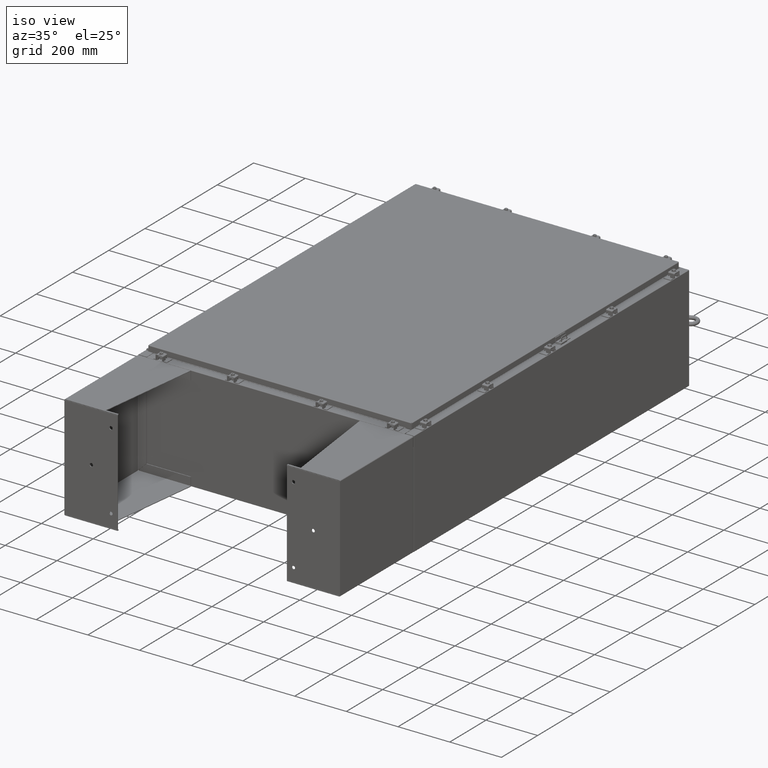
[diagram: clean part render]
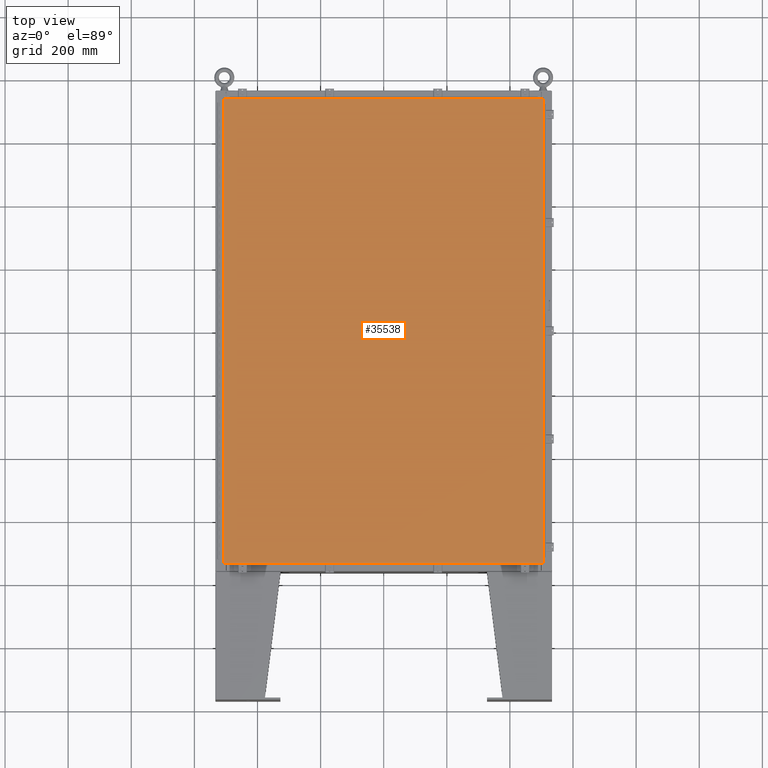
[diagram: tour spotlight — one face highlighted and labeled with its STEP entity id]
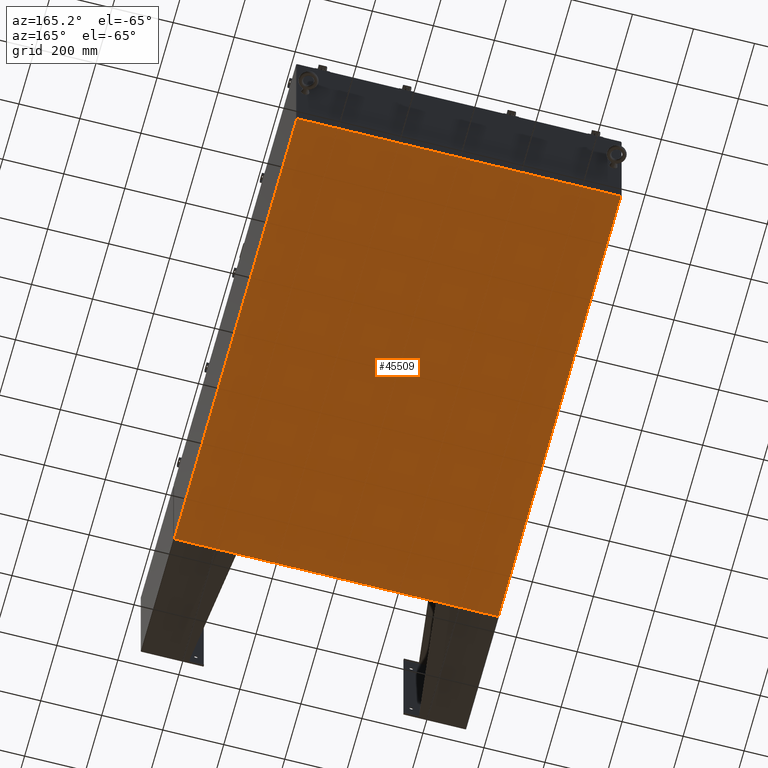
[diagram: tour spotlight — one face highlighted and labeled with its STEP entity id]
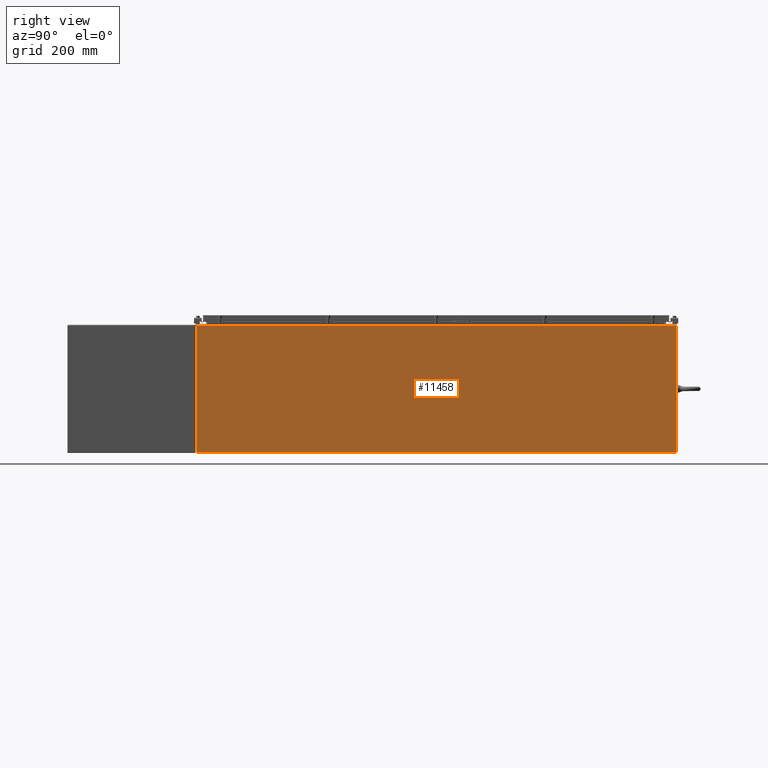
[diagram: tour spotlight — one face highlighted and labeled with its STEP entity id]
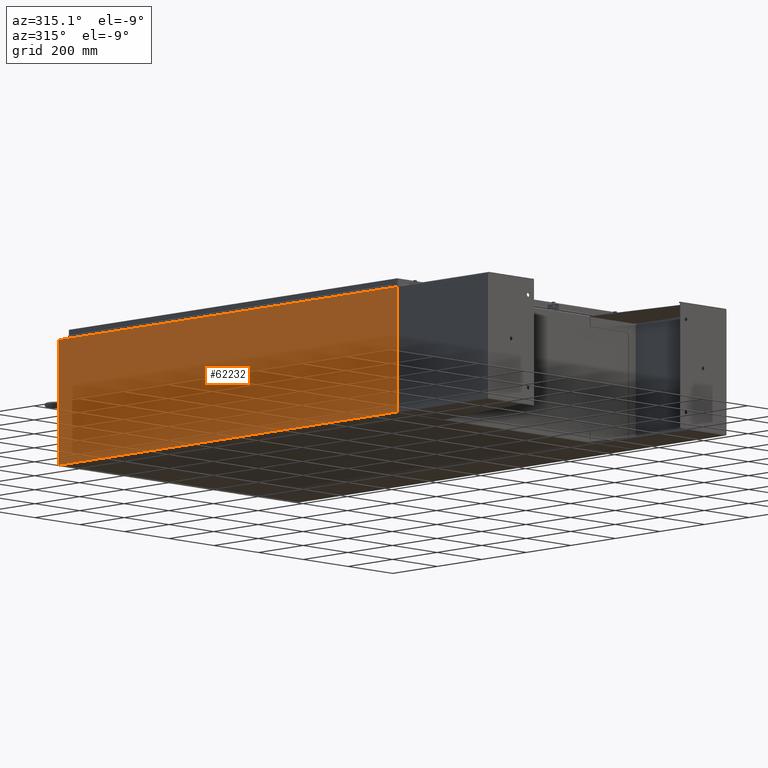
[diagram: tour spotlight — one face highlighted and labeled with its STEP entity id]
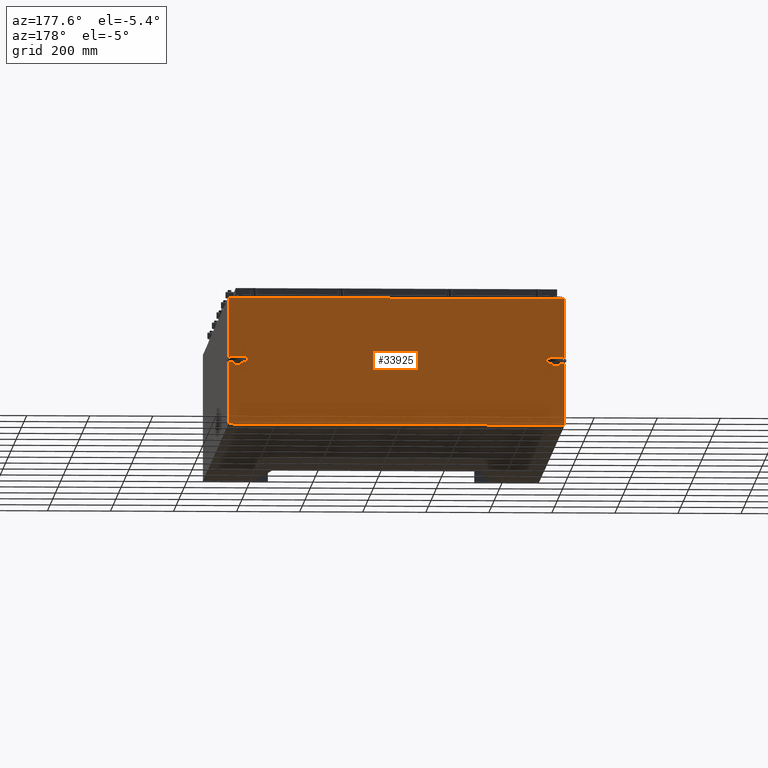
[diagram: tour spotlight — one face highlighted and labeled with its STEP entity id]
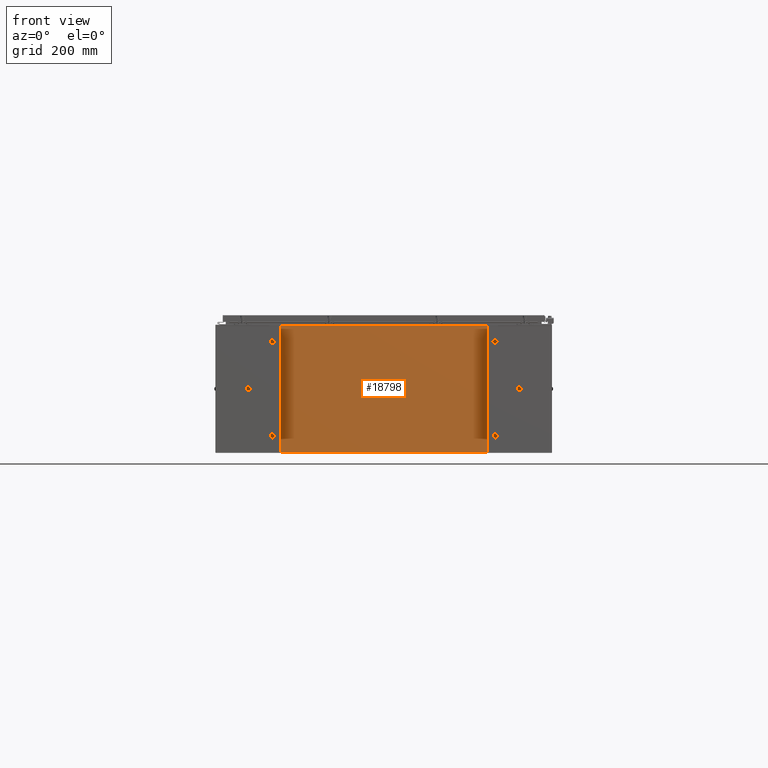
[diagram: tour spotlight — one face highlighted and labeled with its STEP entity id]
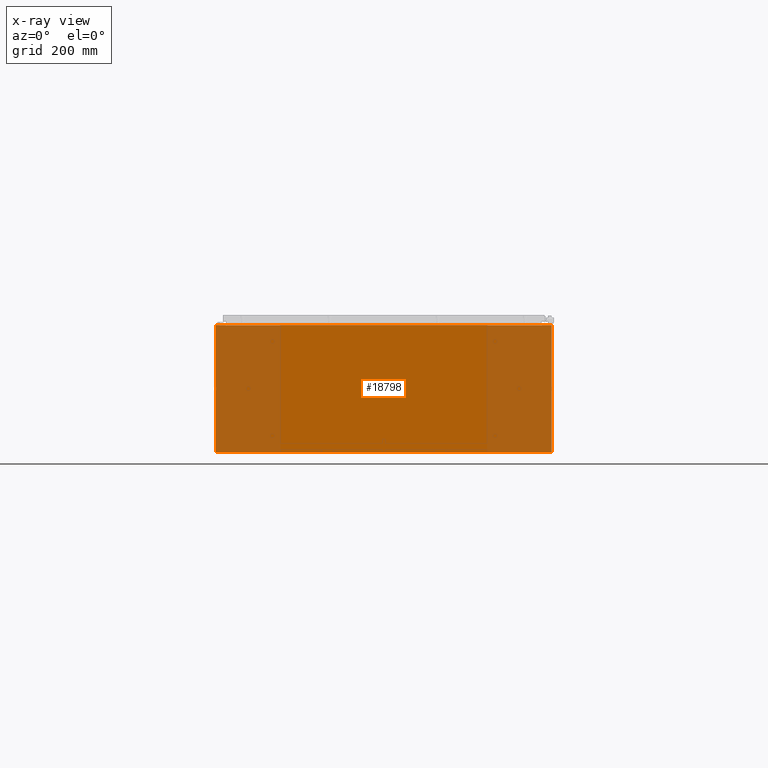
[diagram: x-ray of the same camera — body ghosted, this tour face saturated]
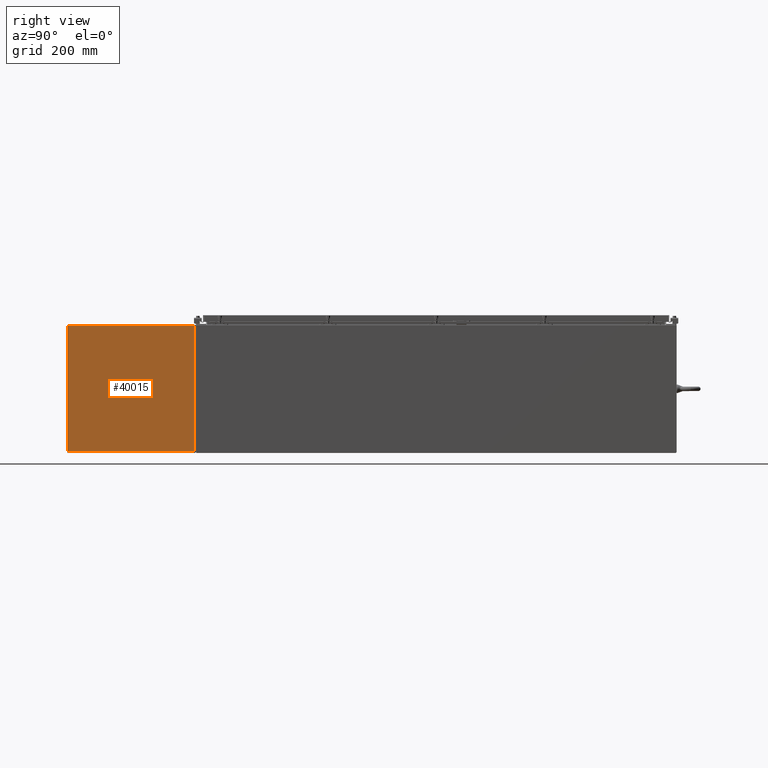
[diagram: tour spotlight — one face highlighted and labeled with its STEP entity id]
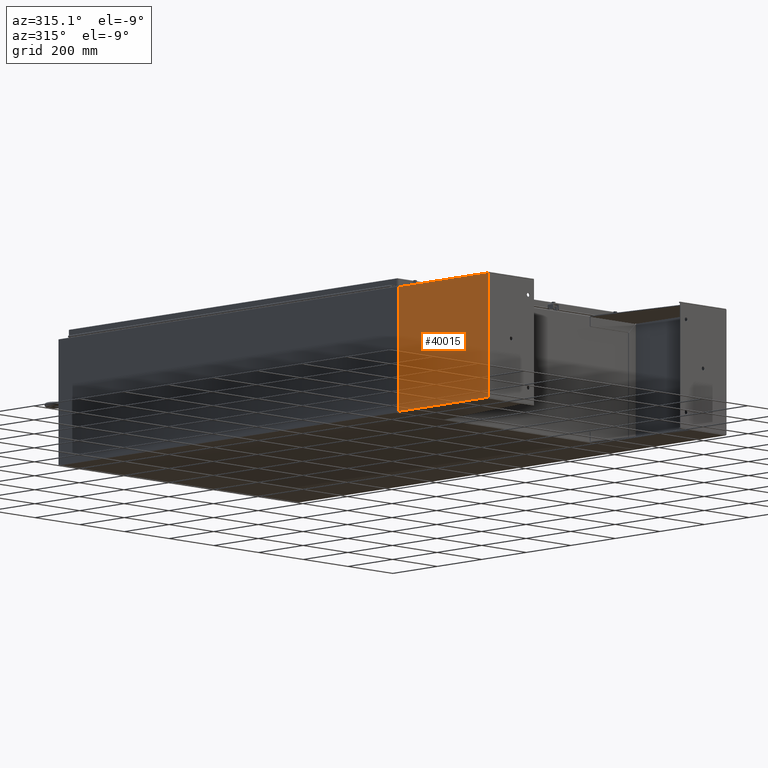
[diagram: tour spotlight — one face highlighted and labeled with its STEP entity id]
A machine part: a face-by-face anatomy tour. The part has 3908 B-rep faces; the first image is the clean iso view, then the 8 largest visible faces are spotlighted one at a time (largest first), each with its STEP entity span.

Face 1 — top view, entity #35538. In plain terms, the highlighted planar face has unit normal (0, 0, -1).
Definition (entity closure, byte-faithful):
#1225 = CARTESIAN_POINT ( 'NONE',  ( -19.99030000000001600, -29.00629999999999600, 1.946441695485787500E-015 ) ) ;
#2276 = EDGE_CURVE ( 'NONE', #32262, #10603, #13389, .T. ) ;
#5779 = LINE ( 'NONE', #63320, #46094 ) ;
#5794 = EDGE_CURVE ( 'NONE', #61072, #32262, #5779, .T. ) ;
#7196 = LINE ( 'NONE', #32165, #50713 ) ;
#7659 = VECTOR ( 'NONE', #16766, 39.37007874015748100 ) ;
#7773 = ORIENTED_EDGE ( 'NONE', *, *, #2276, .T. ) ;
#10603 = VERTEX_POINT ( 'NONE', #51449 ) ;
#11933 = EDGE_LOOP ( 'NONE', ( #43814, #12828, #7773, #47600 ) ) ;
#12828 = ORIENTED_EDGE ( 'NONE', *, *, #5794, .T. ) ;
#13389 = LINE ( 'NONE', #19907, #15044 ) ;
#14996 = CARTESIAN_POINT ( 'NONE',  ( -19.99030000000001600, -29.00629999999999600, 1.946441695485787500E-015 ) ) ;
#15044 = VECTOR ( 'NONE', #20796, 39.37007874015748100 ) ;
#15487 = FACE_OUTER_BOUND ( 'NONE', #11933, .T. ) ;
#16766 = DIRECTION ( 'NONE',  ( 1.000000000000000000, -0.0000000000000000000, -0.0000000000000000000 ) ) ;
#18169 = PLANE ( 'NONE',  #58654 ) ;
#19907 = CARTESIAN_POINT ( 'NONE',  ( 19.99029999999999800, 29.00630000000001400, 1.946441695485787500E-015 ) ) ;
#20796 = DIRECTION ( 'NONE',  ( -1.000000000000000000, -0.0000000000000000000, -0.0000000000000000000 ) ) ;
#23431 = DIRECTION ( 'NONE',  ( -1.000000000000000000, 0.0000000000000000000, -0.0000000000000000000 ) ) ;
#23484 = EDGE_CURVE ( 'NONE', #35304, #61072, #35652, .T. ) ;
#32165 = CARTESIAN_POINT ( 'NONE',  ( -19.99030000000001600, 29.00630000000000700, 8.485802830319618300E-015 ) ) ;
#32262 = VERTEX_POINT ( 'NONE', #45687 ) ;
#35304 = VERTEX_POINT ( 'NONE', #14996 ) ;
#35538 = ADVANCED_FACE ( 'NONE', ( #15487 ), #18169, .F. ) ;
#35652 = LINE ( 'NONE', #1225, #7659 ) ;
#42814 = DIRECTION ( 'NONE',  ( 0.0000000000000000000, -1.000000000000000000, 0.0000000000000000000 ) ) ;
#43814 = ORIENTED_EDGE ( 'NONE', *, *, #23484, .T. ) ;
#45687 = CARTESIAN_POINT ( 'NONE',  ( 19.99029999999999800, 29.00630000000001400, 1.946441695485787500E-015 ) ) ;
#46094 = VECTOR ( 'NONE', #63184, 39.37007874015748100 ) ;
#47600 = ORIENTED_EDGE ( 'NONE', *, *, #51887, .T. ) ;
#47766 = CARTESIAN_POINT ( 'NONE',  ( 19.99030000000000100, -29.00629999999998900, 1.946441695485787500E-015 ) ) ;
#50713 = VECTOR ( 'NONE', #42814, 39.37007874015748100 ) ;
#51449 = CARTESIAN_POINT ( 'NONE',  ( -19.99030000000001600, 29.00630000000000700, 8.485802830319618300E-015 ) ) ;
#51887 = EDGE_CURVE ( 'NONE', #10603, #35304, #7196, .T. ) ;
#54684 = DIRECTION ( 'NONE',  ( 0.0000000000000000000, 0.0000000000000000000, -1.000000000000000000 ) ) ;
#58654 = AXIS2_PLACEMENT_3D ( 'NONE', #64974, #54684, #23431 ) ;
#61072 = VERTEX_POINT ( 'NONE', #47766 ) ;
#63184 = DIRECTION ( 'NONE',  ( 0.0000000000000000000, 1.000000000000000000, 0.0000000000000000000 ) ) ;
#63320 = CARTESIAN_POINT ( 'NONE',  ( 19.99030000000000100, -29.00629999999998900, 1.946441695485787500E-015 ) ) ;
#64974 = CARTESIAN_POINT ( 'NONE',  ( 0.0000000000000000000, 0.0000000000000000000, 0.0000000000000000000 ) ) ;

Face 2 — auxiliary view, entity #45509. In plain terms, the highlighted planar face has unit normal (0, 0, -1).
Definition (entity closure, byte-faithful):
#1478 = LINE ( 'NONE', #18017, #27879 ) ;
#11152 = FACE_OUTER_BOUND ( 'NONE', #51856, .T. ) ;
#11169 = DIRECTION ( 'NONE',  ( -1.000000000000000000, -0.0000000000000000000, -0.0000000000000000000 ) ) ;
#13123 = ORIENTED_EDGE ( 'NONE', *, *, #40315, .T. ) ;
#15792 = DIRECTION ( 'NONE',  ( 1.000000000000000000, 0.0000000000000000000, 0.0000000000000000000 ) ) ;
#15815 = CARTESIAN_POINT ( 'NONE',  ( -20.91230000000003700, -29.92530000000000400, -0.07469999999999994700 ) ) ;
#18017 = CARTESIAN_POINT ( 'NONE',  ( 20.91229999999999800, 29.92530000000000400, -0.07469999999999994700 ) ) ;
#18336 = VERTEX_POINT ( 'NONE', #30785 ) ;
#20280 = AXIS2_PLACEMENT_3D ( 'NONE', #50666, #29833, #66339 ) ;
#27879 = VECTOR ( 'NONE', #39403, 39.37007874015748100 ) ;
#29833 = DIRECTION ( 'NONE',  ( 0.0000000000000000000, 0.0000000000000000000, -1.000000000000000000 ) ) ;
#30785 = CARTESIAN_POINT ( 'NONE',  ( 20.91229999999999800, 29.92530000000000400, -0.07469999999999994700 ) ) ;
#35076 = EDGE_CURVE ( 'NONE', #18336, #41279, #1478, .T. ) ;
#35871 = VERTEX_POINT ( 'NONE', #15815 ) ;
#38675 = EDGE_CURVE ( 'NONE', #18336, #54248, #62799, .T. ) ;
#39403 = DIRECTION ( 'NONE',  ( -0.0000000000000000000, -1.000000000000000000, -0.0000000000000000000 ) ) ;
#40297 = PLANE ( 'NONE',  #20280 ) ;
#40315 = EDGE_CURVE ( 'NONE', #35871, #54248, #47968, .T. ) ;
#41158 = LINE ( 'NONE', #41999, #67088 ) ;
#41279 = VERTEX_POINT ( 'NONE', #63850 ) ;
#41322 = ORIENTED_EDGE ( 'NONE', *, *, #60338, .F. ) ;
#41999 = CARTESIAN_POINT ( 'NONE',  ( -21.00000000000000700, -29.92530000000000400, -0.07470000000000000300 ) ) ;
#45042 = CARTESIAN_POINT ( 'NONE',  ( -20.91230000000001300, 29.92530000000000000, -0.07470000000000000300 ) ) ;
#45509 = ADVANCED_FACE ( 'NONE', ( #11152 ), #40297, .T. ) ;
#46348 = VECTOR ( 'NONE', #62850, 39.37007874015748100 ) ;
#47893 = CARTESIAN_POINT ( 'NONE',  ( -21.00000000000000400, 29.92530000000000000, -0.07470000000000000300 ) ) ;
#47968 = LINE ( 'NONE', #57576, #46348 ) ;
#49006 = VECTOR ( 'NONE', #11169, 39.37007874015748100 ) ;
#49779 = ORIENTED_EDGE ( 'NONE', *, *, #35076, .T. ) ;
#50666 = CARTESIAN_POINT ( 'NONE',  ( 0.0000000000000000000, 0.0000000000000000000, -0.07470000000000000300 ) ) ;
#51640 = ORIENTED_EDGE ( 'NONE', *, *, #38675, .F. ) ;
#51856 = EDGE_LOOP ( 'NONE', ( #41322, #13123, #51640, #49779 ) ) ;
#54248 = VERTEX_POINT ( 'NONE', #45042 ) ;
#57576 = CARTESIAN_POINT ( 'NONE',  ( -20.91230000000003700, -29.92530000000000700, -0.07469999999999994700 ) ) ;
#60338 = EDGE_CURVE ( 'NONE', #35871, #41279, #41158, .T. ) ;
#62799 = LINE ( 'NONE', #47893, #49006 ) ;
#62850 = DIRECTION ( 'NONE',  ( -0.0000000000000000000, 1.000000000000000000, -0.0000000000000000000 ) ) ;
#63850 = CARTESIAN_POINT ( 'NONE',  ( 20.91229999999999800, -29.92530000000000400, -0.07470000000000000300 ) ) ;
#66339 = DIRECTION ( 'NONE',  ( -1.000000000000000000, 0.0000000000000000000, -0.0000000000000000000 ) ) ;
#67088 = VECTOR ( 'NONE', #15792, 39.37007874015748100 ) ;

Face 3 — right view, entity #11458. In plain terms, the highlighted planar face has unit normal (-1, 0, 0).
Definition (entity closure, byte-faithful):
#972 = CARTESIAN_POINT ( 'NONE',  ( 21.00000000000005700, 29.92530000000000400, 15.83760000000000200 ) ) ;
#3502 = DIRECTION ( 'NONE',  ( 3.568060775509200700E-015, 0.0000000000000000000, 1.000000000000000000 ) ) ;
#4680 = VERTEX_POINT ( 'NONE', #44564 ) ;
#5131 = EDGE_CURVE ( 'NONE', #4680, #9661, #62432, .T. ) ;
#5662 = VERTEX_POINT ( 'NONE', #58930 ) ;
#6051 = EDGE_CURVE ( 'NONE', #5662, #21671, #48508, .T. ) ;
#9661 = VERTEX_POINT ( 'NONE', #36577 ) ;
#9819 = EDGE_CURVE ( 'NONE', #9661, #21671, #23483, .T. ) ;
#10574 = AXIS2_PLACEMENT_3D ( 'NONE', #42344, #40316, #32137 ) ;
#11458 = ADVANCED_FACE ( 'NONE', ( #34411 ), #33892, .F. ) ;
#15560 = ORIENTED_EDGE ( 'NONE', *, *, #6051, .F. ) ;
#21671 = VERTEX_POINT ( 'NONE', #55337 ) ;
#22431 = VECTOR ( 'NONE', #45230, 39.37007874015748100 ) ;
#23483 = LINE ( 'NONE', #24288, #49681 ) ;
#24288 = CARTESIAN_POINT ( 'NONE',  ( 20.99999999999999600, -29.92530000000000400, -7.519008994170479700E-014 ) ) ;
#24912 = LINE ( 'NONE', #40405, #38945 ) ;
#31141 = CARTESIAN_POINT ( 'NONE',  ( 20.99999999999999600, -29.92530000000000400, 0.01299999999999766100 ) ) ;
#32137 = DIRECTION ( 'NONE',  ( 3.568060775509200700E-015, 0.0000000000000000000, 1.000000000000000000 ) ) ;
#33892 = PLANE ( 'NONE',  #10574 ) ;
#34411 = FACE_OUTER_BOUND ( 'NONE', #57560, .T. ) ;
#36577 = CARTESIAN_POINT ( 'NONE',  ( 21.00000000000005300, -29.92530000000000400, 15.83760000000000200 ) ) ;
#38945 = VECTOR ( 'NONE', #3502, 39.37007874015748100 ) ;
#40316 = DIRECTION ( 'NONE',  ( -1.000000000000000000, 0.0000000000000000000, 3.568060775509200700E-015 ) ) ;
#40405 = CARTESIAN_POINT ( 'NONE',  ( 20.99999999999999600, 29.92530000000000000, -7.519008994170479700E-014 ) ) ;
#42099 = EDGE_CURVE ( 'NONE', #5662, #4680, #24912, .T. ) ;
#42344 = CARTESIAN_POINT ( 'NONE',  ( 20.99999999999999600, 0.0000000000000000000, -7.519008994170479700E-014 ) ) ;
#44564 = CARTESIAN_POINT ( 'NONE',  ( 21.00000000000005700, 29.92530000000000400, 15.83760000000000200 ) ) ;
#45050 = ORIENTED_EDGE ( 'NONE', *, *, #5131, .T. ) ;
#45230 = DIRECTION ( 'NONE',  ( -0.0000000000000000000, -1.000000000000000000, -0.0000000000000000000 ) ) ;
#45266 = VECTOR ( 'NONE', #67395, 39.37007874015748100 ) ;
#48508 = LINE ( 'NONE', #31141, #45266 ) ;
#49681 = VECTOR ( 'NONE', #64963, 39.37007874015748100 ) ;
#53590 = ORIENTED_EDGE ( 'NONE', *, *, #42099, .T. ) ;
#55337 = CARTESIAN_POINT ( 'NONE',  ( 20.99999999999999600, -29.92530000000000400, 0.01299999999999765100 ) ) ;
#57355 = ORIENTED_EDGE ( 'NONE', *, *, #9819, .T. ) ;
#57560 = EDGE_LOOP ( 'NONE', ( #45050, #57355, #15560, #53590 ) ) ;
#58930 = CARTESIAN_POINT ( 'NONE',  ( 20.99999999999999600, 29.92530000000000400, 0.01299999999999766100 ) ) ;
#62432 = LINE ( 'NONE', #972, #22431 ) ;
#64963 = DIRECTION ( 'NONE',  ( -3.568060775509200700E-015, 0.0000000000000000000, -1.000000000000000000 ) ) ;
#67395 = DIRECTION ( 'NONE',  ( -0.0000000000000000000, -1.000000000000000000, -0.0000000000000000000 ) ) ;

Face 4 — auxiliary view, entity #62232. In plain terms, the highlighted planar face has unit normal (1, 0, 0).
Definition (entity closure, byte-faithful):
#9456 = VECTOR ( 'NONE', #62966, 39.37007874015748100 ) ;
#11213 = EDGE_CURVE ( 'NONE', #39212, #65948, #61350, .T. ) ;
#12236 = ORIENTED_EDGE ( 'NONE', *, *, #45160, .T. ) ;
#13818 = FACE_OUTER_BOUND ( 'NONE', #51015, .T. ) ;
#14431 = CARTESIAN_POINT ( 'NONE',  ( -21.00000000000006000, 29.92530000000000000, 15.83759999999999700 ) ) ;
#15850 = VECTOR ( 'NONE', #35766, 39.37007874015748100 ) ;
#16576 = ORIENTED_EDGE ( 'NONE', *, *, #11213, .T. ) ;
#17517 = LINE ( 'NONE', #30456, #15850 ) ;
#20200 = LINE ( 'NONE', #37033, #9456 ) ;
#20517 = CARTESIAN_POINT ( 'NONE',  ( -21.00000000000000400, 0.0000000000000000000, -7.519008994170483500E-014 ) ) ;
#22109 = LINE ( 'NONE', #31250, #46703 ) ;
#25774 = DIRECTION ( 'NONE',  ( 1.000000000000000000, 9.257643570718695000E-046, 3.568060775509201500E-015 ) ) ;
#28167 = DIRECTION ( 'NONE',  ( -3.568060775509201500E-015, 0.0000000000000000000, 1.000000000000000000 ) ) ;
#28300 = CARTESIAN_POINT ( 'NONE',  ( -21.00000000000000400, -29.92530000000000400, -7.519008994170483500E-014 ) ) ;
#30456 = CARTESIAN_POINT ( 'NONE',  ( -21.00000000000000400, 29.92530000000000000, 0.01299999999999766100 ) ) ;
#31250 = CARTESIAN_POINT ( 'NONE',  ( -21.00000000000000400, 29.92530000000000000, -7.519008994170483500E-014 ) ) ;
#31909 = ORIENTED_EDGE ( 'NONE', *, *, #48916, .F. ) ;
#32636 = CARTESIAN_POINT ( 'NONE',  ( -21.00000000000006400, -29.92530000000000400, 15.83759999999999700 ) ) ;
#35766 = DIRECTION ( 'NONE',  ( -9.257643570718695000E-046, 1.000000000000000000, -3.232288976882543700E-060 ) ) ;
#36849 = CARTESIAN_POINT ( 'NONE',  ( -21.00000000000000400, -29.92530000000000400, 0.01299999999999766100 ) ) ;
#37033 = CARTESIAN_POINT ( 'NONE',  ( -21.00000000000006400, -29.92530000000000700, 15.83759999999999700 ) ) ;
#37318 = EDGE_CURVE ( 'NONE', #65948, #41622, #20200, .T. ) ;
#37486 = ORIENTED_EDGE ( 'NONE', *, *, #37318, .T. ) ;
#39212 = VERTEX_POINT ( 'NONE', #36849 ) ;
#41622 = VERTEX_POINT ( 'NONE', #14431 ) ;
#41666 = CARTESIAN_POINT ( 'NONE',  ( -21.00000000000000400, 29.92530000000000000, 0.01299999999999765100 ) ) ;
#42660 = AXIS2_PLACEMENT_3D ( 'NONE', #20517, #25774, #62282 ) ;
#45160 = EDGE_CURVE ( 'NONE', #41622, #62254, #22109, .T. ) ;
#46703 = VECTOR ( 'NONE', #57452, 39.37007874015748100 ) ;
#47558 = VECTOR ( 'NONE', #28167, 39.37007874015748100 ) ;
#48916 = EDGE_CURVE ( 'NONE', #39212, #62254, #17517, .T. ) ;
#51015 = EDGE_LOOP ( 'NONE', ( #37486, #12236, #31909, #16576 ) ) ;
#51828 = PLANE ( 'NONE',  #42660 ) ;
#57452 = DIRECTION ( 'NONE',  ( 3.568060775509201500E-015, -2.004457698818153200E-032, -1.000000000000000000 ) ) ;
#61350 = LINE ( 'NONE', #28300, #47558 ) ;
#62232 = ADVANCED_FACE ( 'NONE', ( #13818 ), #51828, .F. ) ;
#62254 = VERTEX_POINT ( 'NONE', #41666 ) ;
#62282 = DIRECTION ( 'NONE',  ( 3.568060775509201500E-015, 0.0000000000000000000, -1.000000000000000000 ) ) ;
#62966 = DIRECTION ( 'NONE',  ( 0.0000000000000000000, 1.000000000000000000, 0.0000000000000000000 ) ) ;
#65948 = VERTEX_POINT ( 'NONE', #32636 ) ;

Face 5 — auxiliary view, entity #33925. In plain terms, the highlighted planar face has unit normal (0, -1, 0).
Definition (entity closure, byte-faithful):
#967 = DIRECTION ( 'NONE',  ( -0.0000000000000000000, -0.0000000000000000000, 1.000000000000000000 ) ) ;
#1311 = EDGE_CURVE ( 'NONE', #9131, #61658, #34061, .T. ) ;
#1335 = CARTESIAN_POINT ( 'NONE',  ( -19.88530000000000100, 0.0000000000000000000, 0.3750000000000007800 ) ) ;
#2119 = DIRECTION ( 'NONE',  ( 4.340572780400098900E-014, 0.0000000000000000000, -1.000000000000000000 ) ) ;
#2569 = ORIENTED_EDGE ( 'NONE', *, *, #62073, .F. ) ;
#4140 = VERTEX_POINT ( 'NONE', #32303 ) ;
#4476 = DIRECTION ( 'NONE',  ( 1.000000000000000000, 0.0000000000000000000, -2.611047864225854000E-017 ) ) ;
#4644 = EDGE_CURVE ( 'NONE', #12262, #9131, #56376, .T. ) ;
#5172 = LINE ( 'NONE', #67423, #59256 ) ;
#6063 = CARTESIAN_POINT ( 'NONE',  ( -20.92530000000000400, 0.0000000000000000000, 7.925300000000001800 ) ) ;
#6863 = ORIENTED_EDGE ( 'NONE', *, *, #21676, .F. ) ;
#7064 = DIRECTION ( 'NONE',  ( 0.0000000000000000000, 0.0000000000000000000, -1.000000000000000000 ) ) ;
#7553 = CARTESIAN_POINT ( 'NONE',  ( 20.92530000000000400, 0.0000000000000000000, 7.925300000000000900 ) ) ;
#7581 = DIRECTION ( 'NONE',  ( 0.0000000000000000000, 0.0000000000000000000, 1.000000000000000000 ) ) ;
#7885 = EDGE_CURVE ( 'NONE', #51879, #61658, #64629, .T. ) ;
#8008 = LINE ( 'NONE', #45738, #22062 ) ;
#8742 = DIRECTION ( 'NONE',  ( 0.0000000000000000000, 1.000000000000000000, 0.0000000000000000000 ) ) ;
#8753 = DIRECTION ( 'NONE',  ( 0.0000000000000000000, 0.0000000000000000000, 1.000000000000000000 ) ) ;
#9131 = VERTEX_POINT ( 'NONE', #65448 ) ;
#9133 = ORIENTED_EDGE ( 'NONE', *, *, #45088, .T. ) ;
#10018 = VERTEX_POINT ( 'NONE', #7553 ) ;
#10243 = DIRECTION ( 'NONE',  ( 0.0000000000000000000, 1.000000000000000000, 0.0000000000000000000 ) ) ;
#10279 = LINE ( 'NONE', #57025, #62647 ) ;
#10928 = EDGE_CURVE ( 'NONE', #52970, #46737, #27431, .T. ) ;
#11051 = AXIS2_PLACEMENT_3D ( 'NONE', #51287, #13189, #7064 ) ;
#11707 = FACE_BOUND ( 'NONE', #65478, .T. ) ;
#11740 = CARTESIAN_POINT ( 'NONE',  ( -19.63720000000000400, -0.0000000000000000000, 0.0000000000000000000 ) ) ;
#11843 = ORIENTED_EDGE ( 'NONE', *, *, #35745, .F. ) ;
#12199 = CARTESIAN_POINT ( 'NONE',  ( -19.63720000000000400, -7.171100983368691200E-016, 7.912300000000001900 ) ) ;
#12222 = CARTESIAN_POINT ( 'NONE',  ( 19.63720000000000400, 0.0000000000000000000, 0.0000000000000000000 ) ) ;
#12262 = VERTEX_POINT ( 'NONE', #47007 ) ;
#12401 = VECTOR ( 'NONE', #967, 39.37007874015748100 ) ;
#13189 = DIRECTION ( 'NONE',  ( -0.0000000000000000000, 1.000000000000000000, -0.0000000000000000000 ) ) ;
#13274 = ORIENTED_EDGE ( 'NONE', *, *, #64273, .F. ) ;
#13345 = EDGE_CURVE ( 'NONE', #4140, #12262, #10279, .T. ) ;
#13453 = ORIENTED_EDGE ( 'NONE', *, *, #4644, .F. ) ;
#14349 = LINE ( 'NONE', #11740, #52803 ) ;
#15111 = ORIENTED_EDGE ( 'NONE', *, *, #43505, .F. ) ;
#15354 = AXIS2_PLACEMENT_3D ( 'NONE', #19768, #56222, #24992 ) ;
#16384 = ORIENTED_EDGE ( 'NONE', *, *, #13345, .F. ) ;
#16475 = EDGE_CURVE ( 'NONE', #58407, #37782, #19506, .T. ) ;
#16494 = AXIS2_PLACEMENT_3D ( 'NONE', #53384, #53579, #52792 ) ;
#19506 = CIRCLE ( 'NONE', #48671, 0.3750000000000008300 ) ;
#19536 = EDGE_LOOP ( 'NONE', ( #6863, #57489 ) ) ;
#19768 = CARTESIAN_POINT ( 'NONE',  ( -19.65587500000000500, 0.0000000000000000000, 7.874950000000001900 ) ) ;
#20218 = CARTESIAN_POINT ( 'NONE',  ( -19.67455000000000400, 0.0000000000000000000, 7.925300000000001800 ) ) ;
#20358 = DIRECTION ( 'NONE',  ( 0.0000000000000000000, -0.0000000000000000000, -1.000000000000000000 ) ) ;
#21676 = EDGE_CURVE ( 'NONE', #60135, #34793, #39125, .T. ) ;
#22040 = DIRECTION ( 'NONE',  ( 1.000000000000000000, 0.0000000000000000000, 0.0000000000000000000 ) ) ;
#22062 = VECTOR ( 'NONE', #8753, 39.37007874015748100 ) ;
#22749 = CARTESIAN_POINT ( 'NONE',  ( 19.88530000000000100, 0.0000000000000000000, 0.0000000000000000000 ) ) ;
#23197 = CARTESIAN_POINT ( 'NONE',  ( -19.67455000000000400, 0.0000000000000000000, 7.874950000000001900 ) ) ;
#23510 = LINE ( 'NONE', #62197, #63525 ) ;
#24872 = AXIS2_PLACEMENT_3D ( 'NONE', #46263, #51678, #20358 ) ;
#24992 = DIRECTION ( 'NONE',  ( 0.0000000000000000000, 0.0000000000000000000, -1.000000000000000000 ) ) ;
#25441 = VERTEX_POINT ( 'NONE', #20218 ) ;
#25554 = DIRECTION ( 'NONE',  ( 1.000000000000000000, 0.0000000000000000000, -2.611047864225854000E-017 ) ) ;
#25752 = EDGE_LOOP ( 'NONE', ( #2569, #11843, #13274, #67196, #51871, #13453, #16384, #9133, #34712, #32342, #36986, #65988 ) ) ;
#25779 = VECTOR ( 'NONE', #45722, 39.37007874015748100 ) ;
#26355 = LINE ( 'NONE', #6063, #12401 ) ;
#26660 = VERTEX_POINT ( 'NONE', #61797 ) ;
#26943 = CARTESIAN_POINT ( 'NONE',  ( 20.92530000000000400, 0.0000000000000000000, -7.925299999999997300 ) ) ;
#27431 = LINE ( 'NONE', #60251, #25779 ) ;
#28014 = DIRECTION ( 'NONE',  ( 0.0000000000000000000, 0.0000000000000000000, 1.000000000000000000 ) ) ;
#28086 = ORIENTED_EDGE ( 'NONE', *, *, #16475, .F. ) ;
#28136 = CARTESIAN_POINT ( 'NONE',  ( -20.92530000000000400, 0.0000000000000000000, -7.925299999999997300 ) ) ;
#31866 = CIRCLE ( 'NONE', #15354, 0.01867499999999949400 ) ;
#32303 = CARTESIAN_POINT ( 'NONE',  ( 19.67454999999998200, 0.0000000000000000000, 7.925300000000000900 ) ) ;
#32342 = ORIENTED_EDGE ( 'NONE', *, *, #10928, .T. ) ;
#32383 = VECTOR ( 'NONE', #63911, 39.37007874015748100 ) ;
#32990 = EDGE_CURVE ( 'NONE', #10018, #52970, #5172, .T. ) ;
#33925 = ADVANCED_FACE ( 'NONE', ( #51864, #11707, #38061 ), #67124, .F. ) ;
#34061 = LINE ( 'NONE', #12222, #32383 ) ;
#34712 = ORIENTED_EDGE ( 'NONE', *, *, #32990, .T. ) ;
#34793 = VERTEX_POINT ( 'NONE', #65892 ) ;
#35745 = EDGE_CURVE ( 'NONE', #26660, #66868, #31866, .T. ) ;
#36907 = VECTOR ( 'NONE', #22040, 39.37007874015748100 ) ;
#36986 = ORIENTED_EDGE ( 'NONE', *, *, #43708, .T. ) ;
#37782 = VERTEX_POINT ( 'NONE', #52211 ) ;
#37936 = CIRCLE ( 'NONE', #50444, 0.3750000000000008300 ) ;
#38061 = FACE_OUTER_BOUND ( 'NONE', #25752, .T. ) ;
#38114 = CARTESIAN_POINT ( 'NONE',  ( 19.63720000000000400, 0.0000000000000000000, 7.912300000000001900 ) ) ;
#38189 = CIRCLE ( 'NONE', #64293, 0.3750000000000008300 ) ;
#39125 = CIRCLE ( 'NONE', #16494, 0.3750000000000008300 ) ;
#41347 = EDGE_CURVE ( 'NONE', #34793, #60135, #38189, .T. ) ;
#41716 = CARTESIAN_POINT ( 'NONE',  ( -19.88530000000000100, 0.0000000000000000000, -5.656012487845070000E-017 ) ) ;
#41793 = CARTESIAN_POINT ( 'NONE',  ( -19.88530000000000100, 0.0000000000000000000, -5.656012487845070000E-017 ) ) ;
#43295 = DIRECTION ( 'NONE',  ( 0.0000000000000000000, 0.0000000000000000000, -1.000000000000000000 ) ) ;
#43505 = EDGE_CURVE ( 'NONE', #37782, #58407, #37936, .T. ) ;
#43708 = EDGE_CURVE ( 'NONE', #46737, #55646, #26355, .T. ) ;
#45088 = EDGE_CURVE ( 'NONE', #4140, #10018, #53176, .T. ) ;
#45722 = DIRECTION ( 'NONE',  ( -1.000000000000000000, -0.0000000000000000000, -0.0000000000000000000 ) ) ;
#45738 = CARTESIAN_POINT ( 'NONE',  ( -19.67455000000000400, -0.0000000000000000000, 0.0000000000000000000 ) ) ;
#46263 = CARTESIAN_POINT ( 'NONE',  ( 0.0000000000000000000, 0.0000000000000000000, 0.0000000000000000000 ) ) ;
#46737 = VERTEX_POINT ( 'NONE', #28136 ) ;
#46809 = DIRECTION ( 'NONE',  ( 0.0000000000000000000, 0.0000000000000000000, -1.000000000000000000 ) ) ;
#46996 = DIRECTION ( 'NONE',  ( 0.0000000000000000000, 0.0000000000000000000, 1.000000000000000000 ) ) ;
#47007 = CARTESIAN_POINT ( 'NONE',  ( 19.67455000000000400, 0.0000000000000000000, 7.874950000000001900 ) ) ;
#48671 = AXIS2_PLACEMENT_3D ( 'NONE', #41716, #8742, #7581 ) ;
#50444 = AXIS2_PLACEMENT_3D ( 'NONE', #41793, #10243, #46996 ) ;
#51287 = CARTESIAN_POINT ( 'NONE',  ( 19.65587500000000500, 0.0000000000000000000, 7.874950000000001900 ) ) ;
#51565 = VECTOR ( 'NONE', #25554, 39.37007874015748100 ) ;
#51678 = DIRECTION ( 'NONE',  ( 0.0000000000000000000, -1.000000000000000000, 0.0000000000000000000 ) ) ;
#51864 = FACE_BOUND ( 'NONE', #19536, .T. ) ;
#51871 = ORIENTED_EDGE ( 'NONE', *, *, #1311, .F. ) ;
#51879 = VERTEX_POINT ( 'NONE', #63398 ) ;
#52211 = CARTESIAN_POINT ( 'NONE',  ( -19.88530000000000100, 0.0000000000000000000, -0.3750000000000009400 ) ) ;
#52792 = DIRECTION ( 'NONE',  ( 0.0000000000000000000, 0.0000000000000000000, 1.000000000000000000 ) ) ;
#52803 = VECTOR ( 'NONE', #43295, 39.37007874015748100 ) ;
#52970 = VERTEX_POINT ( 'NONE', #26943 ) ;
#53176 = LINE ( 'NONE', #62051, #51565 ) ;
#53384 = CARTESIAN_POINT ( 'NONE',  ( 19.88530000000000100, 0.0000000000000000000, 0.0000000000000000000 ) ) ;
#53579 = DIRECTION ( 'NONE',  ( 0.0000000000000000000, 1.000000000000000000, 0.0000000000000000000 ) ) ;
#55033 = EDGE_CURVE ( 'NONE', #55646, #25441, #23510, .T. ) ;
#55646 = VERTEX_POINT ( 'NONE', #56830 ) ;
#56222 = DIRECTION ( 'NONE',  ( -0.0000000000000000000, 1.000000000000000000, -0.0000000000000000000 ) ) ;
#56376 = CIRCLE ( 'NONE', #11051, 0.01867499999999949400 ) ;
#56830 = CARTESIAN_POINT ( 'NONE',  ( -20.92530000000000400, 0.0000000000000000000, 7.925300000000001800 ) ) ;
#57025 = CARTESIAN_POINT ( 'NONE',  ( 19.67455000000034500, 0.0000000000000000000, 8.539881619662225600E-013 ) ) ;
#57489 = ORIENTED_EDGE ( 'NONE', *, *, #41347, .F. ) ;
#58407 = VERTEX_POINT ( 'NONE', #1335 ) ;
#59220 = DIRECTION ( 'NONE',  ( 0.0000000000000000000, 1.000000000000000000, 0.0000000000000000000 ) ) ;
#59256 = VECTOR ( 'NONE', #46809, 39.37007874015748100 ) ;
#60135 = VERTEX_POINT ( 'NONE', #61029 ) ;
#60251 = CARTESIAN_POINT ( 'NONE',  ( -20.92530000000000400, 0.0000000000000000000, -7.925299999999997300 ) ) ;
#61029 = CARTESIAN_POINT ( 'NONE',  ( 19.88530000000000100, 0.0000000000000000000, 0.3750000000000008300 ) ) ;
#61658 = VERTEX_POINT ( 'NONE', #38114 ) ;
#61797 = CARTESIAN_POINT ( 'NONE',  ( -19.63720000000000400, -0.0000000000000000000, 7.874950000000001900 ) ) ;
#62051 = CARTESIAN_POINT ( 'NONE',  ( -20.92530000000000400, 0.0000000000000000000, 7.925300000000001800 ) ) ;
#62073 = EDGE_CURVE ( 'NONE', #66868, #25441, #8008, .T. ) ;
#62197 = CARTESIAN_POINT ( 'NONE',  ( -20.92530000000000400, 0.0000000000000000000, 7.925300000000001800 ) ) ;
#62647 = VECTOR ( 'NONE', #2119, 39.37007874015748100 ) ;
#63398 = CARTESIAN_POINT ( 'NONE',  ( -19.63720000000000400, -7.171100983368691200E-016, 7.912300000000001900 ) ) ;
#63525 = VECTOR ( 'NONE', #4476, 39.37007874015748100 ) ;
#63911 = DIRECTION ( 'NONE',  ( 0.0000000000000000000, 0.0000000000000000000, 1.000000000000000000 ) ) ;
#64273 = EDGE_CURVE ( 'NONE', #51879, #26660, #14349, .T. ) ;
#64293 = AXIS2_PLACEMENT_3D ( 'NONE', #22749, #59220, #28014 ) ;
#64629 = LINE ( 'NONE', #12199, #36907 ) ;
#65448 = CARTESIAN_POINT ( 'NONE',  ( 19.63720000000000400, 0.0000000000000000000, 7.874950000000001900 ) ) ;
#65478 = EDGE_LOOP ( 'NONE', ( #28086, #15111 ) ) ;
#65892 = CARTESIAN_POINT ( 'NONE',  ( 19.88530000000000100, 0.0000000000000000000, -0.3750000000000008300 ) ) ;
#65988 = ORIENTED_EDGE ( 'NONE', *, *, #55033, .T. ) ;
#66868 = VERTEX_POINT ( 'NONE', #23197 ) ;
#67124 = PLANE ( 'NONE',  #24872 ) ;
#67196 = ORIENTED_EDGE ( 'NONE', *, *, #7885, .T. ) ;
#67423 = CARTESIAN_POINT ( 'NONE',  ( 20.92530000000000400, 0.0000000000000000000, 7.925300000000000900 ) ) ;

Face 6 — front view, entity #18798. An x-ray twin of the same camera follows (body ghosted, this face saturated) — the face is partly hidden behind the body. In plain terms, the highlighted planar face has unit normal (-0, 1, -0).
Definition (entity closure, byte-faithful):
#82 = VERTEX_POINT ( 'NONE', #62589 ) ;
#1203 = LINE ( 'NONE', #51415, #27607 ) ;
#1644 = AXIS2_PLACEMENT_3D ( 'NONE', #37112, #43571, #36551 ) ;
#1772 = EDGE_CURVE ( 'NONE', #37019, #35270, #47916, .T. ) ;
#2357 = ORIENTED_EDGE ( 'NONE', *, *, #49523, .T. ) ;
#3113 = VECTOR ( 'NONE', #28968, 39.37007874015748100 ) ;
#4885 = VERTEX_POINT ( 'NONE', #47880 ) ;
#5189 = VECTOR ( 'NONE', #58970, 39.37007874015748100 ) ;
#5307 = CARTESIAN_POINT ( 'NONE',  ( -20.92530000000000400, 0.0000000000000000000, -7.925299999999997300 ) ) ;
#5454 = DIRECTION ( 'NONE',  ( -1.000000000000000000, -0.0000000000000000000, -0.0000000000000000000 ) ) ;
#5675 = EDGE_CURVE ( 'NONE', #35305, #43518, #55781, .T. ) ;
#9258 = CARTESIAN_POINT ( 'NONE',  ( -20.92530000000000400, 0.0000000000000000000, 7.925300000000001800 ) ) ;
#10263 = DIRECTION ( 'NONE',  ( 0.0000000000000000000, 0.0000000000000000000, -1.000000000000000000 ) ) ;
#10514 = VERTEX_POINT ( 'NONE', #62120 ) ;
#10648 = VECTOR ( 'NONE', #27447, 39.37007874015748100 ) ;
#11533 = EDGE_CURVE ( 'NONE', #10514, #4885, #18828, .T. ) ;
#11835 = EDGE_CURVE ( 'NONE', #14187, #59418, #51511, .T. ) ;
#13053 = CARTESIAN_POINT ( 'NONE',  ( 19.67454999999998200, 0.0000000000000000000, 7.925300000000000900 ) ) ;
#14074 = CARTESIAN_POINT ( 'NONE',  ( 19.65587500000000500, 0.0000000000000000000, 7.874950000000001900 ) ) ;
#14187 = VERTEX_POINT ( 'NONE', #40608 ) ;
#16357 = VERTEX_POINT ( 'NONE', #60922 ) ;
#18662 = VERTEX_POINT ( 'NONE', #5307 ) ;
#18798 = ADVANCED_FACE ( 'NONE', ( #49793 ), #61239, .F. ) ;
#18828 = LINE ( 'NONE', #37516, #3113 ) ;
#19354 = DIRECTION ( 'NONE',  ( 0.0000000000000000000, 0.0000000000000000000, -1.000000000000000000 ) ) ;
#20064 = VECTOR ( 'NONE', #31823, 39.37007874015748100 ) ;
#20073 = CIRCLE ( 'NONE', #36644, 0.01867499999999949400 ) ;
#21388 = EDGE_CURVE ( 'NONE', #82, #4885, #1203, .T. ) ;
#22907 = VECTOR ( 'NONE', #5454, 39.37007874015748100 ) ;
#23105 = ORIENTED_EDGE ( 'NONE', *, *, #48149, .F. ) ;
#23991 = ORIENTED_EDGE ( 'NONE', *, *, #21388, .F. ) ;
#24201 = EDGE_CURVE ( 'NONE', #14187, #31398, #38674, .T. ) ;
#25882 = CIRCLE ( 'NONE', #28217, 0.01867499999999949400 ) ;
#25900 = CARTESIAN_POINT ( 'NONE',  ( 20.92530000000000400, 0.0000000000000000000, -7.925299999999997300 ) ) ;
#26000 = DIRECTION ( 'NONE',  ( -0.0000000000000000000, 1.000000000000000000, -0.0000000000000000000 ) ) ;
#27229 = CARTESIAN_POINT ( 'NONE',  ( 19.63720000000000400, 0.0000000000000000000, 7.912300000000001900 ) ) ;
#27447 = DIRECTION ( 'NONE',  ( 1.000000000000000000, 0.0000000000000000000, 0.0000000000000000000 ) ) ;
#27607 = VECTOR ( 'NONE', #51323, 39.37007874015748100 ) ;
#28068 = VECTOR ( 'NONE', #10263, 39.37007874015748100 ) ;
#28217 = AXIS2_PLACEMENT_3D ( 'NONE', #57240, #26000, #62511 ) ;
#28968 = DIRECTION ( 'NONE',  ( 1.000000000000000000, 0.0000000000000000000, -2.611047864225854000E-017 ) ) ;
#29622 = ORIENTED_EDGE ( 'NONE', *, *, #1772, .F. ) ;
#30091 = CARTESIAN_POINT ( 'NONE',  ( 19.67455000000000400, 0.0000000000000000000, 7.874950000000001900 ) ) ;
#31398 = VERTEX_POINT ( 'NONE', #27229 ) ;
#31823 = DIRECTION ( 'NONE',  ( 4.340572780400098900E-014, 0.0000000000000000000, -1.000000000000000000 ) ) ;
#33524 = CARTESIAN_POINT ( 'NONE',  ( -19.63720000000000400, -0.0000000000000000000, 7.874950000000001900 ) ) ;
#35161 = CARTESIAN_POINT ( 'NONE',  ( -19.63720000000000400, -0.0000000000000000000, 0.0000000000000000000 ) ) ;
#35270 = VERTEX_POINT ( 'NONE', #30091 ) ;
#35305 = VERTEX_POINT ( 'NONE', #46186 ) ;
#35339 = CARTESIAN_POINT ( 'NONE',  ( 20.92530000000000400, 0.0000000000000000000, 7.925300000000000900 ) ) ;
#35993 = VECTOR ( 'NONE', #61587, 39.37007874015748100 ) ;
#36551 = DIRECTION ( 'NONE',  ( 0.0000000000000000000, -0.0000000000000000000, -1.000000000000000000 ) ) ;
#36644 = AXIS2_PLACEMENT_3D ( 'NONE', #14074, #50687, #19354 ) ;
#36843 = LINE ( 'NONE', #37251, #22907 ) ;
#36914 = VECTOR ( 'NONE', #43980, 39.37007874015748100 ) ;
#37019 = VERTEX_POINT ( 'NONE', #13053 ) ;
#37107 = ORIENTED_EDGE ( 'NONE', *, *, #67762, .F. ) ;
#37112 = CARTESIAN_POINT ( 'NONE',  ( 0.0000000000000000000, 0.0000000000000000000, 0.0000000000000000000 ) ) ;
#37251 = CARTESIAN_POINT ( 'NONE',  ( -20.92530000000000400, 0.0000000000000000000, -7.925299999999997300 ) ) ;
#37516 = CARTESIAN_POINT ( 'NONE',  ( -20.92530000000000400, 0.0000000000000000000, 7.925300000000001800 ) ) ;
#38004 = EDGE_CURVE ( 'NONE', #37019, #35305, #60936, .T. ) ;
#38337 = CARTESIAN_POINT ( 'NONE',  ( -20.92530000000000400, 0.0000000000000000000, 7.925300000000001800 ) ) ;
#38674 = LINE ( 'NONE', #53471, #10648 ) ;
#40489 = EDGE_LOOP ( 'NONE', ( #23991, #37107, #42092, #51734, #58209, #23105, #29622, #61383, #67892, #49996, #2357, #62942 ) ) ;
#40492 = VECTOR ( 'NONE', #40823, 39.37007874015748100 ) ;
#40608 = CARTESIAN_POINT ( 'NONE',  ( -19.63720000000000400, -7.171100983368691200E-016, 7.912300000000001900 ) ) ;
#40823 = DIRECTION ( 'NONE',  ( -0.0000000000000000000, -0.0000000000000000000, 1.000000000000000000 ) ) ;
#42092 = ORIENTED_EDGE ( 'NONE', *, *, #11835, .F. ) ;
#43518 = VERTEX_POINT ( 'NONE', #25900 ) ;
#43571 = DIRECTION ( 'NONE',  ( 0.0000000000000000000, -1.000000000000000000, 0.0000000000000000000 ) ) ;
#43980 = DIRECTION ( 'NONE',  ( 0.0000000000000000000, 0.0000000000000000000, 1.000000000000000000 ) ) ;
#46186 = CARTESIAN_POINT ( 'NONE',  ( 20.92530000000000400, 0.0000000000000000000, 7.925300000000000900 ) ) ;
#47880 = CARTESIAN_POINT ( 'NONE',  ( -19.67455000000000400, 0.0000000000000000000, 7.925300000000001800 ) ) ;
#47916 = LINE ( 'NONE', #56120, #20064 ) ;
#48149 = EDGE_CURVE ( 'NONE', #35270, #16357, #20073, .T. ) ;
#48932 = CARTESIAN_POINT ( 'NONE',  ( 19.63720000000000400, 0.0000000000000000000, 0.0000000000000000000 ) ) ;
#49523 = EDGE_CURVE ( 'NONE', #18662, #10514, #54210, .T. ) ;
#49793 = FACE_OUTER_BOUND ( 'NONE', #40489, .T. ) ;
#49996 = ORIENTED_EDGE ( 'NONE', *, *, #51874, .T. ) ;
#50687 = DIRECTION ( 'NONE',  ( -0.0000000000000000000, 1.000000000000000000, -0.0000000000000000000 ) ) ;
#51323 = DIRECTION ( 'NONE',  ( 0.0000000000000000000, 0.0000000000000000000, 1.000000000000000000 ) ) ;
#51368 = EDGE_CURVE ( 'NONE', #16357, #31398, #64638, .T. ) ;
#51415 = CARTESIAN_POINT ( 'NONE',  ( -19.67455000000000400, -0.0000000000000000000, 0.0000000000000000000 ) ) ;
#51511 = LINE ( 'NONE', #35161, #35993 ) ;
#51734 = ORIENTED_EDGE ( 'NONE', *, *, #24201, .T. ) ;
#51874 = EDGE_CURVE ( 'NONE', #43518, #18662, #36843, .T. ) ;
#53471 = CARTESIAN_POINT ( 'NONE',  ( -19.63720000000000400, -7.171100983368691200E-016, 7.912300000000001900 ) ) ;
#54210 = LINE ( 'NONE', #9258, #40492 ) ;
#55781 = LINE ( 'NONE', #35339, #28068 ) ;
#56120 = CARTESIAN_POINT ( 'NONE',  ( 19.67455000000034500, 0.0000000000000000000, 8.539881619662225600E-013 ) ) ;
#57240 = CARTESIAN_POINT ( 'NONE',  ( -19.65587500000000500, 0.0000000000000000000, 7.874950000000001900 ) ) ;
#58209 = ORIENTED_EDGE ( 'NONE', *, *, #51368, .F. ) ;
#58970 = DIRECTION ( 'NONE',  ( 1.000000000000000000, 0.0000000000000000000, -2.611047864225854000E-017 ) ) ;
#59418 = VERTEX_POINT ( 'NONE', #33524 ) ;
#60922 = CARTESIAN_POINT ( 'NONE',  ( 19.63720000000000400, 0.0000000000000000000, 7.874950000000001900 ) ) ;
#60936 = LINE ( 'NONE', #38337, #5189 ) ;
#61239 = PLANE ( 'NONE',  #1644 ) ;
#61383 = ORIENTED_EDGE ( 'NONE', *, *, #38004, .T. ) ;
#61587 = DIRECTION ( 'NONE',  ( 0.0000000000000000000, 0.0000000000000000000, -1.000000000000000000 ) ) ;
#62120 = CARTESIAN_POINT ( 'NONE',  ( -20.92530000000000400, 0.0000000000000000000, 7.925300000000001800 ) ) ;
#62511 = DIRECTION ( 'NONE',  ( 0.0000000000000000000, 0.0000000000000000000, -1.000000000000000000 ) ) ;
#62589 = CARTESIAN_POINT ( 'NONE',  ( -19.67455000000000400, 0.0000000000000000000, 7.874950000000001900 ) ) ;
#62942 = ORIENTED_EDGE ( 'NONE', *, *, #11533, .T. ) ;
#64638 = LINE ( 'NONE', #48932, #36914 ) ;
#67762 = EDGE_CURVE ( 'NONE', #59418, #82, #25882, .T. ) ;
#67892 = ORIENTED_EDGE ( 'NONE', *, *, #5675, .T. ) ;

Face 7 — right view, entity #40015. In plain terms, the highlighted planar face has unit normal (1, 0, -0).
Definition (entity closure, byte-faithful):
#753 = CARTESIAN_POINT ( 'NONE',  ( -7.856999999999997500, -7.999999999999999100, -0.1039999999999998600 ) ) ;
#922 = CARTESIAN_POINT ( 'NONE',  ( -7.999999999999997300, -7.999999999999999100, -0.1039999999999999800 ) ) ;
#1057 = DIRECTION ( 'NONE',  ( 1.000000000000000000, 0.0000000000000000000, 0.0000000000000000000 ) ) ;
#5121 = EDGE_LOOP ( 'NONE', ( #55093, #19832, #65334, #26929 ) ) ;
#9877 = AXIS2_PLACEMENT_3D ( 'NONE', #17941, #12853, #49500 ) ;
#11323 = CARTESIAN_POINT ( 'NONE',  ( -7.856999999999996700, 7.857000000000001100, -0.1039999999999998600 ) ) ;
#12853 = DIRECTION ( 'NONE',  ( 0.0000000000000000000, 0.0000000000000000000, -1.000000000000000000 ) ) ;
#14057 = EDGE_CURVE ( 'NONE', #55073, #60014, #22339, .T. ) ;
#14425 = CARTESIAN_POINT ( 'NONE',  ( 7.857000000000001100, -7.999999999999989300, -0.1039999999999998600 ) ) ;
#16174 = VECTOR ( 'NONE', #21939, 39.37007874015748100 ) ;
#17838 = LINE ( 'NONE', #11323, #16174 ) ;
#17941 = CARTESIAN_POINT ( 'NONE',  ( 8.000000000000001800, 8.000000000000001800, -0.1039999999999999800 ) ) ;
#19085 = EDGE_CURVE ( 'NONE', #55329, #27227, #48955, .T. ) ;
#19832 = ORIENTED_EDGE ( 'NONE', *, *, #26401, .T. ) ;
#21097 = VECTOR ( 'NONE', #29069, 39.37007874015748100 ) ;
#21939 = DIRECTION ( 'NONE',  ( 1.000000000000000000, 0.0000000000000000000, 0.0000000000000000000 ) ) ;
#22339 = LINE ( 'NONE', #753, #34615 ) ;
#22509 = EDGE_CURVE ( 'NONE', #55073, #27227, #59261, .T. ) ;
#23154 = CARTESIAN_POINT ( 'NONE',  ( 7.857000000000001100, 7.857000000000001100, -0.1039999999999998600 ) ) ;
#26116 = CARTESIAN_POINT ( 'NONE',  ( -7.856999999999997500, -8.000000000000000000, -0.1039999999999998600 ) ) ;
#26401 = EDGE_CURVE ( 'NONE', #60014, #55329, #17838, .T. ) ;
#26929 = ORIENTED_EDGE ( 'NONE', *, *, #22509, .F. ) ;
#27227 = VERTEX_POINT ( 'NONE', #14425 ) ;
#29069 = DIRECTION ( 'NONE',  ( -0.0000000000000000000, -1.000000000000000000, -0.0000000000000000000 ) ) ;
#34615 = VECTOR ( 'NONE', #37769, 39.37007874015748100 ) ;
#36541 = FACE_OUTER_BOUND ( 'NONE', #5121, .T. ) ;
#37769 = DIRECTION ( 'NONE',  ( -0.0000000000000000000, 1.000000000000000000, -0.0000000000000000000 ) ) ;
#40015 = ADVANCED_FACE ( 'NONE', ( #36541 ), #49299, .T. ) ;
#45522 = VECTOR ( 'NONE', #1057, 39.37007874015748100 ) ;
#48955 = LINE ( 'NONE', #53458, #21097 ) ;
#49008 = CARTESIAN_POINT ( 'NONE',  ( -7.856999999999997500, 7.856999999999998400, -0.1039999999999999000 ) ) ;
#49299 = PLANE ( 'NONE',  #9877 ) ;
#49500 = DIRECTION ( 'NONE',  ( -1.000000000000000000, 0.0000000000000000000, -0.0000000000000000000 ) ) ;
#53458 = CARTESIAN_POINT ( 'NONE',  ( 7.857000000000001100, 8.000000000000001800, -0.1039999999999998600 ) ) ;
#55073 = VERTEX_POINT ( 'NONE', #26116 ) ;
#55093 = ORIENTED_EDGE ( 'NONE', *, *, #14057, .T. ) ;
#55329 = VERTEX_POINT ( 'NONE', #23154 ) ;
#59261 = LINE ( 'NONE', #922, #45522 ) ;
#60014 = VERTEX_POINT ( 'NONE', #49008 ) ;
#65334 = ORIENTED_EDGE ( 'NONE', *, *, #19085, .T. ) ;

Face 8 — auxiliary view, entity #40015. In plain terms, the highlighted planar face has unit normal (-1, 0, -0).
Definition (entity closure, byte-faithful):
#753 = CARTESIAN_POINT ( 'NONE',  ( -7.856999999999997500, -7.999999999999999100, -0.1039999999999998600 ) ) ;
#922 = CARTESIAN_POINT ( 'NONE',  ( -7.999999999999997300, -7.999999999999999100, -0.1039999999999999800 ) ) ;
#1057 = DIRECTION ( 'NONE',  ( 1.000000000000000000, 0.0000000000000000000, 0.0000000000000000000 ) ) ;
#5121 = EDGE_LOOP ( 'NONE', ( #55093, #19832, #65334, #26929 ) ) ;
#9877 = AXIS2_PLACEMENT_3D ( 'NONE', #17941, #12853, #49500 ) ;
#11323 = CARTESIAN_POINT ( 'NONE',  ( -7.856999999999996700, 7.857000000000001100, -0.1039999999999998600 ) ) ;
#12853 = DIRECTION ( 'NONE',  ( 0.0000000000000000000, 0.0000000000000000000, -1.000000000000000000 ) ) ;
#14057 = EDGE_CURVE ( 'NONE', #55073, #60014, #22339, .T. ) ;
#14425 = CARTESIAN_POINT ( 'NONE',  ( 7.857000000000001100, -7.999999999999989300, -0.1039999999999998600 ) ) ;
#16174 = VECTOR ( 'NONE', #21939, 39.37007874015748100 ) ;
#17838 = LINE ( 'NONE', #11323, #16174 ) ;
#17941 = CARTESIAN_POINT ( 'NONE',  ( 8.000000000000001800, 8.000000000000001800, -0.1039999999999999800 ) ) ;
#19085 = EDGE_CURVE ( 'NONE', #55329, #27227, #48955, .T. ) ;
#19832 = ORIENTED_EDGE ( 'NONE', *, *, #26401, .T. ) ;
#21097 = VECTOR ( 'NONE', #29069, 39.37007874015748100 ) ;
#21939 = DIRECTION ( 'NONE',  ( 1.000000000000000000, 0.0000000000000000000, 0.0000000000000000000 ) ) ;
#22339 = LINE ( 'NONE', #753, #34615 ) ;
#22509 = EDGE_CURVE ( 'NONE', #55073, #27227, #59261, .T. ) ;
#23154 = CARTESIAN_POINT ( 'NONE',  ( 7.857000000000001100, 7.857000000000001100, -0.1039999999999998600 ) ) ;
#26116 = CARTESIAN_POINT ( 'NONE',  ( -7.856999999999997500, -8.000000000000000000, -0.1039999999999998600 ) ) ;
#26401 = EDGE_CURVE ( 'NONE', #60014, #55329, #17838, .T. ) ;
#26929 = ORIENTED_EDGE ( 'NONE', *, *, #22509, .F. ) ;
#27227 = VERTEX_POINT ( 'NONE', #14425 ) ;
#29069 = DIRECTION ( 'NONE',  ( -0.0000000000000000000, -1.000000000000000000, -0.0000000000000000000 ) ) ;
#34615 = VECTOR ( 'NONE', #37769, 39.37007874015748100 ) ;
#36541 = FACE_OUTER_BOUND ( 'NONE', #5121, .T. ) ;
#37769 = DIRECTION ( 'NONE',  ( -0.0000000000000000000, 1.000000000000000000, -0.0000000000000000000 ) ) ;
#40015 = ADVANCED_FACE ( 'NONE', ( #36541 ), #49299, .T. ) ;
#45522 = VECTOR ( 'NONE', #1057, 39.37007874015748100 ) ;
#48955 = LINE ( 'NONE', #53458, #21097 ) ;
#49008 = CARTESIAN_POINT ( 'NONE',  ( -7.856999999999997500, 7.856999999999998400, -0.1039999999999999000 ) ) ;
#49299 = PLANE ( 'NONE',  #9877 ) ;
#49500 = DIRECTION ( 'NONE',  ( -1.000000000000000000, 0.0000000000000000000, -0.0000000000000000000 ) ) ;
#53458 = CARTESIAN_POINT ( 'NONE',  ( 7.857000000000001100, 8.000000000000001800, -0.1039999999999998600 ) ) ;
#55073 = VERTEX_POINT ( 'NONE', #26116 ) ;
#55093 = ORIENTED_EDGE ( 'NONE', *, *, #14057, .T. ) ;
#55329 = VERTEX_POINT ( 'NONE', #23154 ) ;
#59261 = LINE ( 'NONE', #922, #45522 ) ;
#60014 = VERTEX_POINT ( 'NONE', #49008 ) ;
#65334 = ORIENTED_EDGE ( 'NONE', *, *, #19085, .T. ) ;